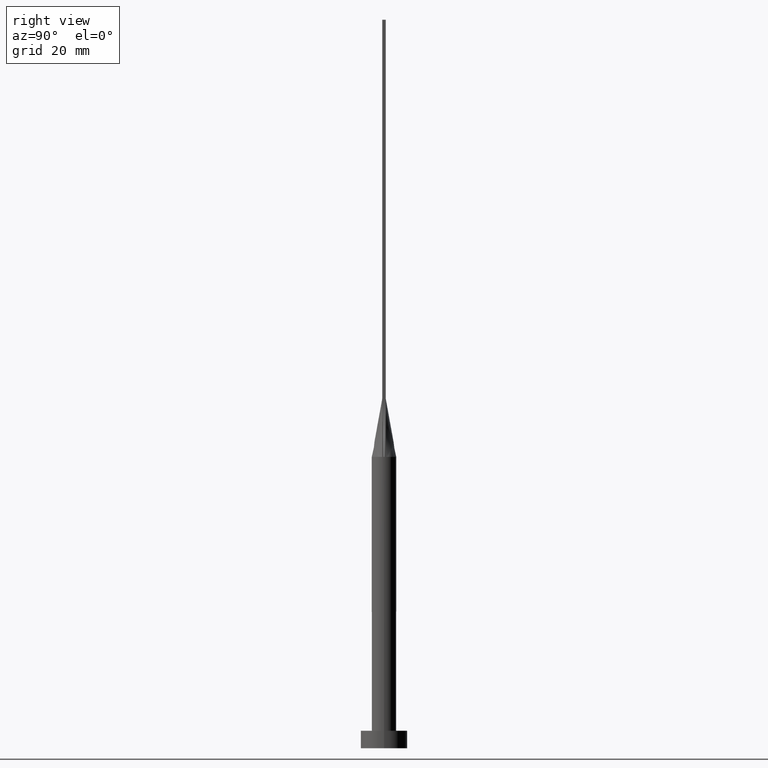
[diagram: clean part render]
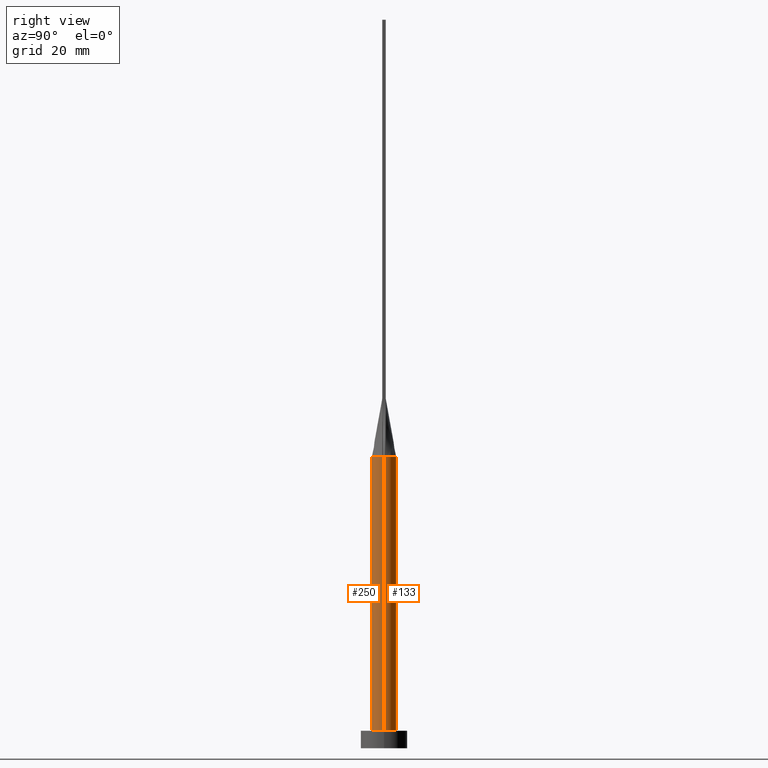
[diagram: same view with one multi-face feature highlighted, each face labeled with its STEP entity id]
A machine part, right view. The highlighted faces form ONE feature: a constant-radius fillet chain: 2 tangent blend faces with common blend radius 2.1 mm. The faces share edges in the B-rep.
Their STEP definitions:
[1] entity #250 (Cylinder):
#11 = DIRECTION ( 'NONE',  ( 0.000000000000000000, 0.000000000000000000, 1.000000000000000000 ) ) ;
#36 = EDGE_CURVE ( 'NONE', #278, #501, #187, .T. ) ;
#44 = EDGE_CURVE ( 'NONE', #278, #546, #141, .T. ) ;
#85 = CARTESIAN_POINT ( 'NONE',  ( -2.100000000000000089, 0.000000000000000000, 50.00000000000000000 ) ) ;
#100 = AXIS2_PLACEMENT_3D ( 'NONE', #477, #206, #384 ) ;
#101 = FACE_OUTER_BOUND ( 'NONE', #408, .T. ) ;
#138 = LINE ( 'NONE', #311, #211 ) ;
#141 = LINE ( 'NONE', #85, #513 ) ;
#157 = EDGE_CURVE ( 'NONE', #292, #169, #478, .T. ) ;
#169 = VERTEX_POINT ( 'NONE', #443 ) ;
#176 = AXIS2_PLACEMENT_3D ( 'NONE', #319, #11, #191 ) ;
#187 = CIRCLE ( 'NONE', #176, 2.100000000000000089 ) ;
#191 = DIRECTION ( 'NONE',  ( 1.000000000000000000, 0.000000000000000000, 0.000000000000000000 ) ) ;
#203 = ORIENTED_EDGE ( 'NONE', *, *, #157, .F. ) ;
#206 = DIRECTION ( 'NONE',  ( 0.000000000000000000, 0.000000000000000000, 1.000000000000000000 ) ) ;
#211 = VECTOR ( 'NONE', #364, 1000.000000000000000 ) ;
#214 = CARTESIAN_POINT ( 'NONE',  ( 0.000000000000000000, 0.000000000000000000, 50.00000000000000000 ) ) ;
#229 = VERTEX_POINT ( 'NONE', #447 ) ;
#232 = CARTESIAN_POINT ( 'NONE',  ( -2.099921383865792635, -5.254633567926592411E-16, 50.00000000000000000 ) ) ;
#238 = ORIENTED_EDGE ( 'NONE', *, *, #417, .F. ) ;
#250 = ADVANCED_FACE ( 'NONE', ( #101 ), #471, .T. ) ;
#278 = VERTEX_POINT ( 'NONE', #232 ) ;
#284 = CARTESIAN_POINT ( 'NONE',  ( -2.100000000000000089, 0.000000000000000000, 3.000000000000000000 ) ) ;
#292 = VERTEX_POINT ( 'NONE', #316 ) ;
#294 = DIRECTION ( 'NONE',  ( 0.000000000000000000, 0.000000000000000000, 1.000000000000000000 ) ) ;
#311 = CARTESIAN_POINT ( 'NONE',  ( 2.100000000000000089, 2.571758278209441957E-16, 50.00000000000000000 ) ) ;
#316 = CARTESIAN_POINT ( 'NONE',  ( 2.074492141291045755, -0.3275508996892426139, 50.00000000000000000 ) ) ;
#318 = EDGE_CURVE ( 'NONE', #169, #229, #138, .T. ) ;
#319 = CARTESIAN_POINT ( 'NONE',  ( 0.000000000000000000, 0.000000000000000000, 50.00000000000000000 ) ) ;
#321 = AXIS2_PLACEMENT_3D ( 'NONE', #347, #294, #486 ) ;
#347 = CARTESIAN_POINT ( 'NONE',  ( 0.000000000000000000, 0.000000000000000000, 3.000000000000000000 ) ) ;
#349 = DIRECTION ( 'NONE',  ( 1.000000000000000000, -7.993605777301127091E-15, 0.000000000000000000 ) ) ;
#354 = AXIS2_PLACEMENT_3D ( 'NONE', #214, #395, #349 ) ;
#364 = DIRECTION ( 'NONE',  ( -0.000000000000000000, -0.000000000000000000, -1.000000000000000000 ) ) ;
#381 = AXIS2_PLACEMENT_3D ( 'NONE', #412, #550, #458 ) ;
#384 = DIRECTION ( 'NONE',  ( 1.000000000000000000, 0.000000000000000000, 0.000000000000000000 ) ) ;
#395 = DIRECTION ( 'NONE',  ( 0.000000000000000000, 0.000000000000000000, 1.000000000000000000 ) ) ;
#408 = EDGE_LOOP ( 'NONE', ( #465, #203, #238, #470, #415, #422 ) ) ;
#412 = CARTESIAN_POINT ( 'NONE',  ( 0.000000000000000000, 0.000000000000000000, 50.00000000000000000 ) ) ;
#415 = ORIENTED_EDGE ( 'NONE', *, *, #44, .T. ) ;
#417 = EDGE_CURVE ( 'NONE', #501, #292, #523, .T. ) ;
#420 = DIRECTION ( 'NONE',  ( -0.000000000000000000, -0.000000000000000000, -1.000000000000000000 ) ) ;
#422 = ORIENTED_EDGE ( 'NONE', *, *, #569, .T. ) ;
#443 = CARTESIAN_POINT ( 'NONE',  ( 2.099921383865792635, 5.174786140116233847E-16, 50.00000000000000000 ) ) ;
#447 = CARTESIAN_POINT ( 'NONE',  ( 2.100000000000000089, 2.571758278209441957E-16, 3.000000000000000000 ) ) ;
#458 = DIRECTION ( 'NONE',  ( -1.000000000000000000, 0.000000000000000000, 0.000000000000000000 ) ) ;
#465 = ORIENTED_EDGE ( 'NONE', *, *, #318, .F. ) ;
#470 = ORIENTED_EDGE ( 'NONE', *, *, #36, .F. ) ;
#471 = CYLINDRICAL_SURFACE ( 'NONE', #381, 2.100000000000000089 ) ;
#477 = CARTESIAN_POINT ( 'NONE',  ( 0.000000000000000000, 0.000000000000000000, 50.00000000000000000 ) ) ;
#478 = CIRCLE ( 'NONE', #354, 2.100000000000000089 ) ;
#486 = DIRECTION ( 'NONE',  ( 1.000000000000000000, 0.000000000000000000, 0.000000000000000000 ) ) ;
#501 = VERTEX_POINT ( 'NONE', #533 ) ;
#513 = VECTOR ( 'NONE', #420, 1000.000000000000000 ) ;
#523 = CIRCLE ( 'NONE', #100, 2.100000000000000089 ) ;
#533 = CARTESIAN_POINT ( 'NONE',  ( -2.074486960997361962, -0.3275502116714910095, 50.00000000000000000 ) ) ;
#546 = VERTEX_POINT ( 'NONE', #284 ) ;
#550 = DIRECTION ( 'NONE',  ( -0.000000000000000000, -0.000000000000000000, -1.000000000000000000 ) ) ;
#552 = CIRCLE ( 'NONE', #321, 2.100000000000000089 ) ;
#569 = EDGE_CURVE ( 'NONE', #546, #229, #552, .T. ) ;
[2] entity #133 (Cylinder):
#26 = ORIENTED_EDGE ( 'NONE', *, *, #99, .T. ) ;
#34 = ORIENTED_EDGE ( 'NONE', *, *, #190, .F. ) ;
#44 = EDGE_CURVE ( 'NONE', #278, #546, #141, .T. ) ;
#47 = B_SPLINE_CURVE_WITH_KNOTS ( 'NONE', 3,
 ( #254, #540, #351, #573, #578, #167, #125, #575, #295, #218, #298, #72, #75, #445, #401, #355, #221, #404 ),
 .UNSPECIFIED., .F., .F.,
 ( 4, 2, 2, 2, 2, 2, 2, 2, 4 ),
 ( 0.000000000000000000, 0.1249999999999999722, 0.2500000000000000000, 0.3750000000000000000, 0.5000000000000000000, 0.6250000000000000000, 0.7500000000000000000, 0.8750000000000000000, 1.000000000000000000 ),
 .UNSPECIFIED. ) ;
#63 = DIRECTION ( 'NONE',  ( 0.000000000000000000, 0.000000000000000000, 1.000000000000000000 ) ) ;
#72 = CARTESIAN_POINT ( 'NONE',  ( -1.119115561862284558, 1.799829988698611327, 49.99999999999999289 ) ) ;
#75 = CARTESIAN_POINT ( 'NONE',  ( -1.342614810400549308, 1.634425746458370021, 50.00000000000002132 ) ) ;
#85 = CARTESIAN_POINT ( 'NONE',  ( -2.100000000000000089, 0.000000000000000000, 50.00000000000000000 ) ) ;
#99 = EDGE_CURVE ( 'NONE', #229, #546, #161, .T. ) ;
#102 = DIRECTION ( 'NONE',  ( 1.000000000000000000, 0.000000000000000000, 0.000000000000000000 ) ) ;
#114 = CARTESIAN_POINT ( 'NONE',  ( 0.000000000000000000, 0.000000000000000000, 50.00000000000000000 ) ) ;
#123 = ORIENTED_EDGE ( 'NONE', *, *, #378, .F. ) ;
#125 = CARTESIAN_POINT ( 'NONE',  ( 1.119115561862284558, 1.799829988698611105, 49.99999999999999289 ) ) ;
#133 = ADVANCED_FACE ( 'NONE', ( #566 ), #490, .T. ) ;
#138 = LINE ( 'NONE', #311, #211 ) ;
#141 = LINE ( 'NONE', #85, #513 ) ;
#142 = ORIENTED_EDGE ( 'NONE', *, *, #318, .T. ) ;
#153 = AXIS2_PLACEMENT_3D ( 'NONE', #328, #63, #102 ) ;
#159 = CARTESIAN_POINT ( 'NONE',  ( 2.074471112824316510, 0.3275477247839024275, 50.00000000000000000 ) ) ;
#161 = CIRCLE ( 'NONE', #331, 2.100000000000000089 ) ;
#167 = CARTESIAN_POINT ( 'NONE',  ( 1.342614810400549086, 1.634425746458369799, 50.00000000000001421 ) ) ;
#169 = VERTEX_POINT ( 'NONE', #443 ) ;
#190 = EDGE_CURVE ( 'NONE', #169, #549, #431, .T. ) ;
#201 = ORIENTED_EDGE ( 'NONE', *, *, #44, .F. ) ;
#211 = VECTOR ( 'NONE', #364, 1000.000000000000000 ) ;
#212 = CARTESIAN_POINT ( 'NONE',  ( 0.000000000000000000, 0.000000000000000000, 50.00000000000000000 ) ) ;
#218 = CARTESIAN_POINT ( 'NONE',  ( -0.2990728642939458615, 2.100000000000000089, 49.99999999999999289 ) ) ;
#220 = EDGE_CURVE ( 'NONE', #549, #330, #47, .T. ) ;
#221 = CARTESIAN_POINT ( 'NONE',  ( -2.047342767731585855, 0.4982646475365663519, 50.00000000000000711 ) ) ;
#229 = VERTEX_POINT ( 'NONE', #447 ) ;
#232 = CARTESIAN_POINT ( 'NONE',  ( -2.099921383865792635, -5.254633567926592411E-16, 50.00000000000000000 ) ) ;
#242 = AXIS2_PLACEMENT_3D ( 'NONE', #114, #288, #482 ) ;
#254 = CARTESIAN_POINT ( 'NONE',  ( 2.074471112824316510, 0.3275477247839024275, 50.00000000000000000 ) ) ;
#262 = DIRECTION ( 'NONE',  ( 0.000000000000000000, 0.000000000000000000, 1.000000000000000000 ) ) ;
#278 = VERTEX_POINT ( 'NONE', #232 ) ;
#284 = CARTESIAN_POINT ( 'NONE',  ( -2.100000000000000089, 0.000000000000000000, 3.000000000000000000 ) ) ;
#288 = DIRECTION ( 'NONE',  ( -0.000000000000000000, -0.000000000000000000, -1.000000000000000000 ) ) ;
#295 = CARTESIAN_POINT ( 'NONE',  ( 0.2990728642939458615, 2.100000000000000089, 50.00000000000000711 ) ) ;
#298 = CARTESIAN_POINT ( 'NONE',  ( -0.5970064165420507774, 2.033566071616263127, 50.00000000000000000 ) ) ;
#311 = CARTESIAN_POINT ( 'NONE',  ( 2.100000000000000089, 2.571758278209441957E-16, 50.00000000000000000 ) ) ;
#318 = EDGE_CURVE ( 'NONE', #169, #229, #138, .T. ) ;
#328 = CARTESIAN_POINT ( 'NONE',  ( 0.000000000000000000, 0.000000000000000000, 50.00000000000000000 ) ) ;
#330 = VERTEX_POINT ( 'NONE', #398 ) ;
#331 = AXIS2_PLACEMENT_3D ( 'NONE', #467, #374, #345 ) ;
#343 = AXIS2_PLACEMENT_3D ( 'NONE', #212, #262, #441 ) ;
#345 = DIRECTION ( 'NONE',  ( 1.000000000000000000, 0.000000000000000000, 0.000000000000000000 ) ) ;
#351 = CARTESIAN_POINT ( 'NONE',  ( 1.996565546919327527, 0.6845950695482651005, 50.00000000000001421 ) ) ;
#355 = CARTESIAN_POINT ( 'NONE',  ( -1.996565546919327527, 0.6845950695482648785, 50.00000000000000711 ) ) ;
#364 = DIRECTION ( 'NONE',  ( -0.000000000000000000, -0.000000000000000000, -1.000000000000000000 ) ) ;
#374 = DIRECTION ( 'NONE',  ( 0.000000000000000000, 0.000000000000000000, 1.000000000000000000 ) ) ;
#378 = EDGE_CURVE ( 'NONE', #330, #278, #451, .T. ) ;
#398 = CARTESIAN_POINT ( 'NONE',  ( -2.074476228699557279, 0.3275484103472254827, 50.00000000000000000 ) ) ;
#401 = CARTESIAN_POINT ( 'NONE',  ( -1.819451111325472326, 1.069832718648841885, 50.00000000000000711 ) ) ;
#404 = CARTESIAN_POINT ( 'NONE',  ( -2.074476228699557279, 0.3275484103472254827, 50.00000000000000000 ) ) ;
#420 = DIRECTION ( 'NONE',  ( -0.000000000000000000, -0.000000000000000000, -1.000000000000000000 ) ) ;
#431 = CIRCLE ( 'NONE', #343, 2.100000000000000089 ) ;
#441 = DIRECTION ( 'NONE',  ( 1.000000000000000000, 0.000000000000000000, 0.000000000000000000 ) ) ;
#443 = CARTESIAN_POINT ( 'NONE',  ( 2.099921383865792635, 5.174786140116233847E-16, 50.00000000000000000 ) ) ;
#445 = CARTESIAN_POINT ( 'NONE',  ( -1.692271541701912296, 1.268928319070362631, 50.00000000000001421 ) ) ;
#447 = CARTESIAN_POINT ( 'NONE',  ( 2.100000000000000089, 2.571758278209441957E-16, 3.000000000000000000 ) ) ;
#451 = CIRCLE ( 'NONE', #153, 2.100000000000000089 ) ;
#457 = ORIENTED_EDGE ( 'NONE', *, *, #220, .F. ) ;
#467 = CARTESIAN_POINT ( 'NONE',  ( 0.000000000000000000, 0.000000000000000000, 3.000000000000000000 ) ) ;
#482 = DIRECTION ( 'NONE',  ( -1.000000000000000000, 0.000000000000000000, 0.000000000000000000 ) ) ;
#490 = CYLINDRICAL_SURFACE ( 'NONE', #242, 2.100000000000000089 ) ;
#513 = VECTOR ( 'NONE', #420, 1000.000000000000000 ) ;
#540 = CARTESIAN_POINT ( 'NONE',  ( 2.047342767731584967, 0.4982646475365660188, 50.00000000000002132 ) ) ;
#546 = VERTEX_POINT ( 'NONE', #284 ) ;
#549 = VERTEX_POINT ( 'NONE', #159 ) ;
#555 = EDGE_LOOP ( 'NONE', ( #34, #142, #26, #201, #123, #457 ) ) ;
#566 = FACE_OUTER_BOUND ( 'NONE', #555, .T. ) ;
#573 = CARTESIAN_POINT ( 'NONE',  ( 1.819451111325471215, 1.069832718648841885, 49.99999999999999289 ) ) ;
#575 = CARTESIAN_POINT ( 'NONE',  ( 0.5970064165420508884, 2.033566071616262683, 50.00000000000000711 ) ) ;
#578 = CARTESIAN_POINT ( 'NONE',  ( 1.692271541701912296, 1.268928319070362187, 50.00000000000000711 ) ) ;